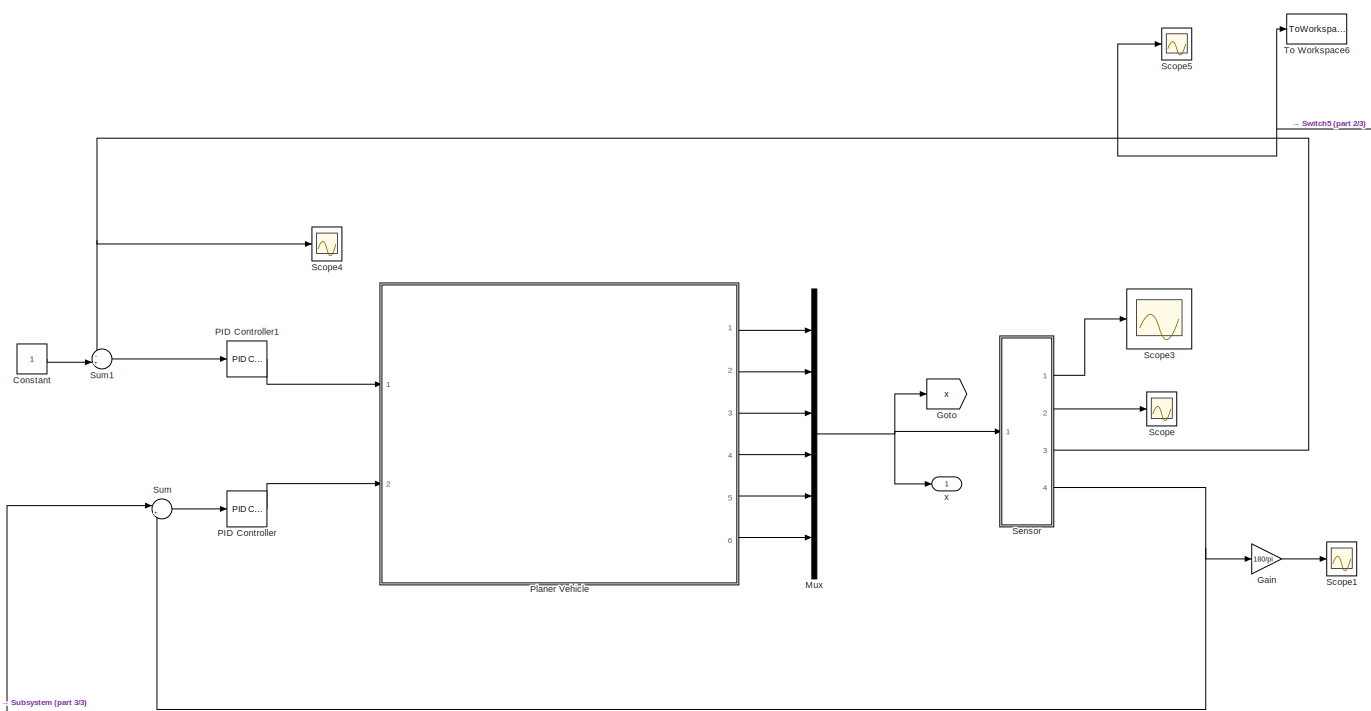
[diagram: root canvas - part 1/3, full width, middle band]
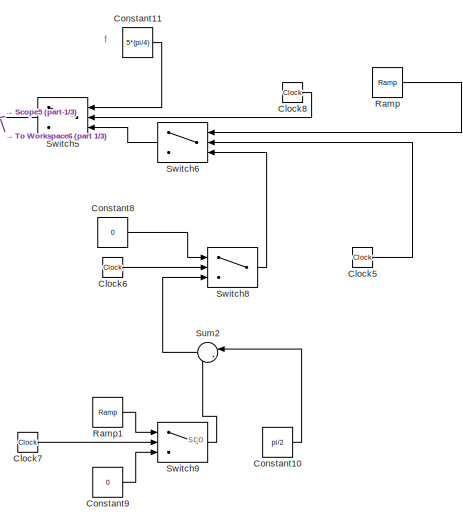
[diagram: root canvas - part 2/3, top right region]
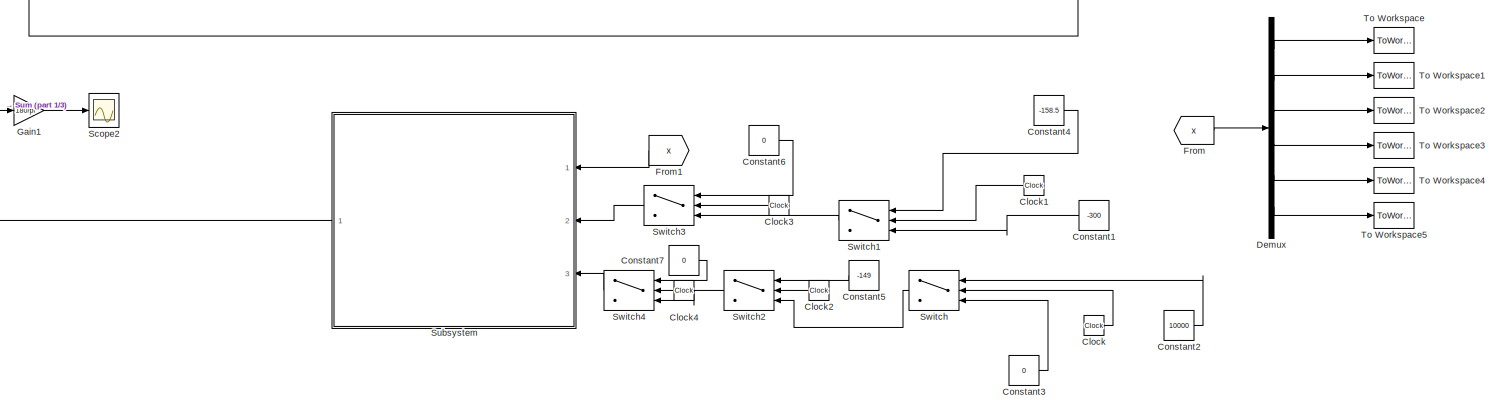
[diagram: root canvas - part 3/3, full width, bottom band]
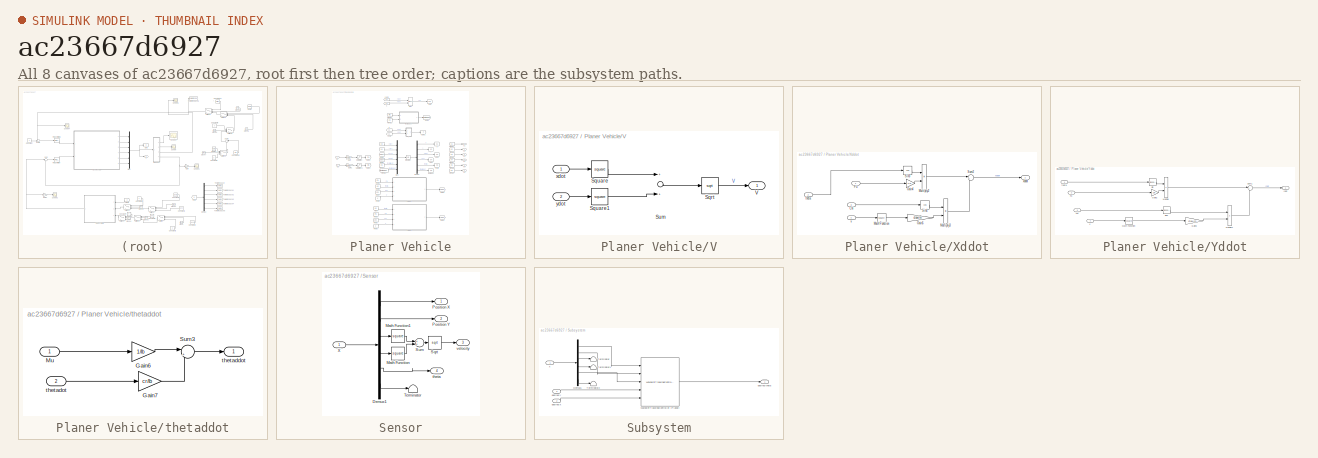
[diagram: thumbnail index - all 8 canvases of the model, root first then tree order]
MODEL slx_ac23667d6927
KIND model
CONFIG AbsTol = auto
CONFIG EnableMultiTasking = off
CONFIG FixedStep = auto
CONFIG MaxStep = auto
CONFIG MinStep = auto
CONFIG RelTol = 1e-3
CONFIG SampleTimeConstraint = Unconstrained
CONFIG Solver = VariableStepAuto
CONFIG SolverName = VariableStepAuto
CONFIG StartTime = 0.0
CONFIG StopTime = 1537
BLOCK [Clock] Clock
BLOCK [Clock] Clock1
BLOCK [Clock] Clock2
BLOCK [Clock] Clock3
BLOCK [Clock] Clock4
BLOCK [Clock] Clock5
BLOCK [Clock] Clock6
  Decimation = 154
BLOCK [Clock] Clock7
  Decimation = 154
BLOCK [Clock] Clock8
BLOCK [Constant] Constant
BLOCK [Constant] Constant1
  Value = -300
BLOCK [Constant] Constant10
  Value = pi/2
BLOCK [Constant] Constant11
  Value = 5*(pi/4)
BLOCK [Constant] Constant2
  Value = 10000
BLOCK [Constant] Constant3
  Value = 0
BLOCK [Constant] Constant4
  Value = -158.5
BLOCK [Constant] Constant5
  Value = -149
BLOCK [Constant] Constant6
  Value = 0
BLOCK [Constant] Constant7
  Value = 0
BLOCK [Constant] Constant8
  Value = 0
BLOCK [Constant] Constant9
  Value = 0
BLOCK [Demux] Demux
  DisplayOption = bar
  Outputs = 6
  Ports = [1, 6]
BLOCK [From] From
  GotoTag = x
BLOCK [From] From1
  GotoTag = x
BLOCK [Gain] Gain
  Gain = 180/pi
  OutDataTypeStr = Inherit: Inherit via internal rule
  ParamDataTypeStr = Inherit: Inherit via internal rule
  SaturateOnIntegerOverflow = off
BLOCK [Gain] Gain1
  Gain = 180/pi
  OutDataTypeStr = Inherit: Inherit via internal rule
  ParamDataTypeStr = Inherit: Inherit via internal rule
  SaturateOnIntegerOverflow = off
BLOCK [Goto] Goto
  GotoTag = x
BLOCK [Mux] Mux
  DisplayOption = bar
  Inputs = 6
  Ports = [6, 1]
BLOCK [Reference] PID Controller  REF=simulink/Continuous/PID Controller
  Ports = [1, 1]
  SourceBlock = simulink/Continuous/PID Controller
  SourceProductBaseCode = SL
  SourceProductName = Simulink
  SourceType = PID 1dof
BLOCK [Reference] PID Controller1  REF=simulink/Continuous/PID Controller
  Ports = [1, 1]
  SourceBlock = simulink/Continuous/PID Controller
  SourceProductBaseCode = SL
  SourceProductName = Simulink
  SourceType = PID 1dof
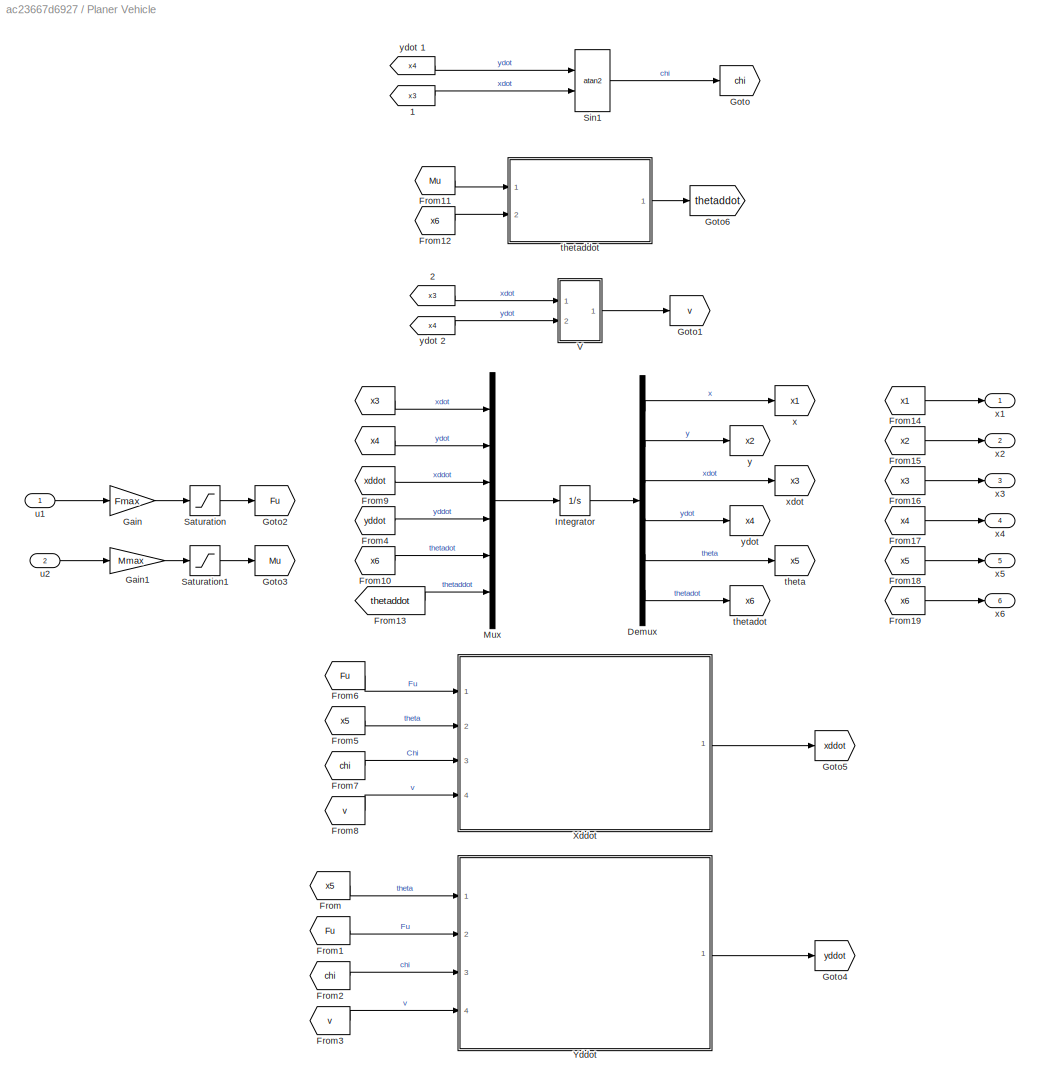
BLOCK [SubSystem] Planer Vehicle
  Ports = [2, 6]
  RequestExecContextInheritance = off
BLOCK [From] Planer Vehicle/ 
  GotoTag = x3
BLOCK [From] Planer Vehicle/ 1
  GotoTag = x3
BLOCK [From] Planer Vehicle/ 2
  GotoTag = x3
BLOCK [From] Planer Vehicle/ ydot 1
  GotoTag = x4
BLOCK [From] Planer Vehicle/ ydot 2
  GotoTag = x4
BLOCK [Demux] Planer Vehicle/Demux
  DisplayOption = bar
  Outputs = 6
  Ports = [1, 6]
BLOCK [From] Planer Vehicle/From
  GotoTag = x5
BLOCK [From] Planer Vehicle/From1
  GotoTag = Fu
BLOCK [From] Planer Vehicle/From10
  GotoTag = x6
BLOCK [From] Planer Vehicle/From11
  GotoTag = Mu
BLOCK [From] Planer Vehicle/From12
  GotoTag = x6
BLOCK [From] Planer Vehicle/From13
  GotoTag = thetaddot
BLOCK [From] Planer Vehicle/From14
  GotoTag = x1
BLOCK [From] Planer Vehicle/From15
  GotoTag = x2
BLOCK [From] Planer Vehicle/From16
  GotoTag = x3
BLOCK [From] Planer Vehicle/From17
  GotoTag = x4
BLOCK [From] Planer Vehicle/From18
  GotoTag = x5
BLOCK [From] Planer Vehicle/From19
  GotoTag = x6
BLOCK [From] Planer Vehicle/From2
  GotoTag = chi
BLOCK [From] Planer Vehicle/From3
  GotoTag = v
BLOCK [From] Planer Vehicle/From4
  GotoTag = yddot
BLOCK [From] Planer Vehicle/From5
  GotoTag = x5
BLOCK [From] Planer Vehicle/From6
  GotoTag = Fu
BLOCK [From] Planer Vehicle/From7
  GotoTag = chi
BLOCK [From] Planer Vehicle/From8
  GotoTag = v
BLOCK [From] Planer Vehicle/From9
  GotoTag = xddot
BLOCK [Gain] Planer Vehicle/Gain
  Gain = Fmax
  OutDataTypeStr = Inherit: Inherit via internal rule
  ParamDataTypeStr = Inherit: Inherit via internal rule
  SaturateOnIntegerOverflow = off
BLOCK [Gain] Planer Vehicle/Gain1
  Gain = Mmax
  OutDataTypeStr = Inherit: Inherit via internal rule
  ParamDataTypeStr = Inherit: Inherit via internal rule
  SaturateOnIntegerOverflow = off
BLOCK [Goto] Planer Vehicle/Goto
  GotoTag = chi
BLOCK [Goto] Planer Vehicle/Goto1
  GotoTag = v
BLOCK [Goto] Planer Vehicle/Goto2
  GotoTag = Fu
BLOCK [Goto] Planer Vehicle/Goto3
  GotoTag = Mu
BLOCK [Goto] Planer Vehicle/Goto4
  GotoTag = yddot
BLOCK [Goto] Planer Vehicle/Goto5
  GotoTag = xddot
BLOCK [Goto] Planer Vehicle/Goto6
  GotoTag = thetaddot
BLOCK [Integrator] Planer Vehicle/Integrator
  InitialCondition = [0;0;0;0;0;0]
  Ports = [1, 1]
BLOCK [Mux] Planer Vehicle/Mux
  DisplayOption = bar
  Inputs = 6
  Ports = [6, 1]
BLOCK [Saturate] Planer Vehicle/Saturation
  InputPortMap = u0
  LowerLimit = 0
  Ports = [1, 1]
  UpperLimit = 1
BLOCK [Saturate] Planer Vehicle/Saturation1
  InputPortMap = u0
  LowerLimit = 0
  Ports = [1, 1]
  UpperLimit = 1
BLOCK [Trigonometry] Planer Vehicle/Sin1
  Operator = atan2
  Ports = [2, 1]
BLOCK [SubSystem] Planer Vehicle/V
  Ports = [2, 1]
  RequestExecContextInheritance = off
BLOCK [Sqrt] Planer Vehicle/V/Sqrt
BLOCK [Math] Planer Vehicle/V/Square
  Operator = square
  Ports = [1, 1]
BLOCK [Math] Planer Vehicle/V/Square1
  Operator = square
  Ports = [1, 1]
BLOCK [Sum] Planer Vehicle/V/Sum
  InputSameDT = off
  OutDataTypeStr = Inherit: Inherit via internal rule
  Ports = [2, 1]
  SaturateOnIntegerOverflow = off
BLOCK [Outport] Planer Vehicle/V/V
  IconDisplay = Port number
BLOCK [Inport] Planer Vehicle/V/xdot
  IconDisplay = Port number
BLOCK [Inport] Planer Vehicle/V/ydot
  IconDisplay = Port number
  Port = 2
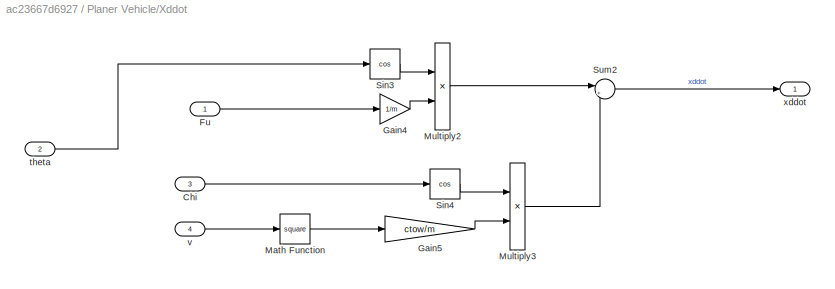
BLOCK [SubSystem] Planer Vehicle/Xddot
  Ports = [4, 1]
  RequestExecContextInheritance = off
BLOCK [Inport] Planer Vehicle/Xddot/Chi
  IconDisplay = Port number
  Port = 3
BLOCK [Inport] Planer Vehicle/Xddot/Fu
  IconDisplay = Port number
BLOCK [Gain] Planer Vehicle/Xddot/Gain4
  Gain = 1/m
  OutDataTypeStr = Inherit: Inherit via internal rule
  ParamDataTypeStr = Inherit: Inherit via internal rule
  SaturateOnIntegerOverflow = off
BLOCK [Gain] Planer Vehicle/Xddot/Gain5
  Gain = ctow/m
  OutDataTypeStr = Inherit: Inherit via internal rule
  ParamDataTypeStr = Inherit: Inherit via internal rule
  SaturateOnIntegerOverflow = off
BLOCK [Math] Planer Vehicle/Xddot/Math Function
  Operator = square
  Ports = [1, 1]
BLOCK [Product] Planer Vehicle/Xddot/Multiply2
  InputSameDT = off
  OutDataTypeStr = Inherit: Inherit via internal rule
  Ports = [2, 1]
  RndMeth = Floor
  SaturateOnIntegerOverflow = off
BLOCK [Product] Planer Vehicle/Xddot/Multiply3
  InputSameDT = off
  OutDataTypeStr = Inherit: Inherit via internal rule
  Ports = [2, 1]
  RndMeth = Floor
  SaturateOnIntegerOverflow = off
BLOCK [Trigonometry] Planer Vehicle/Xddot/Sin3
  Operator = cos
  Ports = [1, 1]
BLOCK [Trigonometry] Planer Vehicle/Xddot/Sin4
  Operator = cos
  Ports = [1, 1]
BLOCK [Sum] Planer Vehicle/Xddot/Sum2
  IconShape = round
  InputSameDT = off
  Inputs = |+-
  OutDataTypeStr = Inherit: Inherit via internal rule
  Ports = [2, 1]
  SaturateOnIntegerOverflow = off
BLOCK [Inport] Planer Vehicle/Xddot/theta
  IconDisplay = Port number
  Port = 2
BLOCK [Inport] Planer Vehicle/Xddot/v
  IconDisplay = Port number
  Port = 4
BLOCK [Outport] Planer Vehicle/Xddot/xddot
  IconDisplay = Port number
BLOCK [SubSystem] Planer Vehicle/Yddot
  Ports = [4, 1]
  RequestExecContextInheritance = off
BLOCK [Inport] Planer Vehicle/Yddot/Fu
  IconDisplay = Port number
  Port = 2
BLOCK [Gain] Planer Vehicle/Yddot/Gain2
  Gain = 1/m
  OutDataTypeStr = Inherit: Inherit via internal rule
  ParamDataTypeStr = Inherit: Inherit via internal rule
  SaturateOnIntegerOverflow = off
BLOCK [Gain] Planer Vehicle/Yddot/Gain3
  Gain = ctow/m
  OutDataTypeStr = Inherit: Inherit via internal rule
  ParamDataTypeStr = Inherit: Inherit via internal rule
  SaturateOnIntegerOverflow = off
BLOCK [Math] Planer Vehicle/Yddot/Math Function
  Operator = square
  Ports = [1, 1]
BLOCK [Product] Planer Vehicle/Yddot/Multiply
  InputSameDT = off
  OutDataTypeStr = Inherit: Inherit via internal rule
  Ports = [2, 1]
  RndMeth = Floor
  SaturateOnIntegerOverflow = off
BLOCK [Product] Planer Vehicle/Yddot/Multiply1
  InputSameDT = off
  OutDataTypeStr = Inherit: Inherit via internal rule
  Ports = [2, 1]
  RndMeth = Floor
  SaturateOnIntegerOverflow = off
BLOCK [Trigonometry] Planer Vehicle/Yddot/Sin
  Ports = [1, 1]
BLOCK [Trigonometry] Planer Vehicle/Yddot/Sin2
  Ports = [1, 1]
BLOCK [Sum] Planer Vehicle/Yddot/Sum1
  IconShape = round
  InputSameDT = off
  Inputs = |+-
  OutDataTypeStr = Inherit: Inherit via internal rule
  Ports = [2, 1]
  SaturateOnIntegerOverflow = off
BLOCK [Inport] Planer Vehicle/Yddot/chi
  IconDisplay = Port number
  Port = 3
BLOCK [Inport] Planer Vehicle/Yddot/theta
  IconDisplay = Port number
BLOCK [Inport] Planer Vehicle/Yddot/v
  IconDisplay = Port number
  Port = 4
BLOCK [Outport] Planer Vehicle/Yddot/ydot
  IconDisplay = Port number
BLOCK [Goto] Planer Vehicle/theta
  GotoTag = x5
BLOCK [SubSystem] Planer Vehicle/thetaddot
  Ports = [2, 1]
  RequestExecContextInheritance = off
BLOCK [Gain] Planer Vehicle/thetaddot/Gain6
  Gain = 1/Ib
  OutDataTypeStr = Inherit: Inherit via internal rule
  ParamDataTypeStr = Inherit: Inherit via internal rule
  SaturateOnIntegerOverflow = off
BLOCK [Gain] Planer Vehicle/thetaddot/Gain7
  Gain = cr/Ib
  OutDataTypeStr = Inherit: Inherit via internal rule
  ParamDataTypeStr = Inherit: Inherit via internal rule
  SaturateOnIntegerOverflow = off
BLOCK [Inport] Planer Vehicle/thetaddot/Mu
  IconDisplay = Port number
BLOCK [Sum] Planer Vehicle/thetaddot/Sum3
  IconShape = round
  InputSameDT = off
  Inputs = |+-
  OutDataTypeStr = Inherit: Inherit via internal rule
  Ports = [2, 1]
  SaturateOnIntegerOverflow = off
BLOCK [Outport] Planer Vehicle/thetaddot/thetaddot
  IconDisplay = Port number
BLOCK [Inport] Planer Vehicle/thetaddot/thetadot
  IconDisplay = Port number
  Port = 2
BLOCK [Goto] Planer Vehicle/thetadot
  GotoTag = x6
BLOCK [Inport] Planer Vehicle/u1
  IconDisplay = Port number
BLOCK [Inport] Planer Vehicle/u2 
  IconDisplay = Port number
  Port = 2
BLOCK [Goto] Planer Vehicle/x
  GotoTag = x1
BLOCK [Outport] Planer Vehicle/x1
  IconDisplay = Port number
BLOCK [Outport] Planer Vehicle/x2
  IconDisplay = Port number
  Port = 2
BLOCK [Outport] Planer Vehicle/x3
  IconDisplay = Port number
  Port = 3
BLOCK [Outport] Planer Vehicle/x4
  IconDisplay = Port number
  Port = 4
BLOCK [Outport] Planer Vehicle/x5
  IconDisplay = Port number
  Port = 5
BLOCK [Outport] Planer Vehicle/x6
  IconDisplay = Port number
  Port = 6
BLOCK [Goto] Planer Vehicle/xdot
  GotoTag = x3
BLOCK [Goto] Planer Vehicle/y
  GotoTag = x2
BLOCK [Goto] Planer Vehicle/ydot
  GotoTag = x4
BLOCK [Reference] Ramp  REF=simulink/Sources/Ramp
  Ports = [0, 1]
  SourceBlock = simulink/Sources/Ramp
  SourceProductBaseCode = SL
  SourceProductName = Simulink
  SourceType = Ramp
BLOCK [Reference] Ramp1  REF=simulink/Sources/Ramp
  Ports = [0, 1]
  SourceBlock = simulink/Sources/Ramp
  SourceProductBaseCode = SL
  SourceProductName = Simulink
  SourceType = Ramp
BLOCK [Scope] Scope
  Floating = off
  NumInputPorts = 1
  Ports = [1]
  ScopeSpecificationString = Simulink.scopes.TimeScopeBlockCfg('CurrentConfiguration', extmgr.ConfigurationSet(extmgr.Configuration('Core','General UI',true),extmgr.Configuration('Core','Source UI',true),extmgr.Configuration('Sources','WiredSimulink',true),extmgr.Configuration('Visuals','Time Domain',true,'SerializedDisplays',{struct('MinYLimReal','-41.28944','MaxYLimReal','371.60494','YLabelReal','','MinYLimMag','0.00000','M...<+1438ch>
BLOCK [Scope] Scope1
  Floating = off
  NumInputPorts = 1
  Ports = [1]
  ScopeSpecificationString = Simulink.scopes.TimeScopeBlockCfg('CurrentConfiguration', extmgr.ConfigurationSet(extmgr.Configuration('Core','General UI',true),extmgr.Configuration('Core','Source UI',true),extmgr.Configuration('Sources','WiredSimulink',true,'DataLoggingVariableName','ScopeData1'),extmgr.Configuration('Visuals','Time Domain',true,'SerializedDisplays',{struct('MinYLimReal','-28.96123','MaxYLimReal','260.65107','Y...<+1373ch>
BLOCK [Scope] Scope2
  Floating = off
  NumInputPorts = 1
  Ports = [1]
  ScopeSpecificationString = Simulink.scopes.TimeScopeBlockCfg('CurrentConfiguration', extmgr.ConfigurationSet(extmgr.Configuration('Core','General UI',true),extmgr.Configuration('Core','Source UI',true),extmgr.Configuration('Sources','WiredSimulink',true,'DataLoggingVariableName','ScopeData2'),extmgr.Configuration('Visuals','Time Domain',true,'SerializedDisplays',{struct('MinYLimReal','-242.11089','MaxYLimReal','378.99801','...<+1456ch>
BLOCK [Scope] Scope3
  Floating = off
  NumInputPorts = 1
  Ports = [1]
  ScopeSpecificationString = Simulink.scopes.TimeScopeBlockCfg('CurrentConfiguration', extmgr.ConfigurationSet(extmgr.Configuration('Core','General UI',true),extmgr.Configuration('Core','Source UI',true),extmgr.Configuration('Sources','WiredSimulink',true,'DataLoggingVariableName','ScopeData3'),extmgr.Configuration('Visuals','Time Domain',true,'SerializedDisplays',{struct('MinYLimReal','-63.29604','MaxYLimReal','569.66434','Y...<+1477ch>
BLOCK [Scope] Scope4
  Floating = off
  NumInputPorts = 1
  Ports = [1]
  ScopeSpecificationString = Simulink.scopes.TimeScopeBlockCfg('CurrentConfiguration', extmgr.ConfigurationSet(extmgr.Configuration('Core','General UI',true),extmgr.Configuration('Core','Source UI',true),extmgr.Configuration('Sources','WiredSimulink',true,'DataLoggingVariableName','ScopeData4'),extmgr.Configuration('Visuals','Time Domain',true,'SerializedDisplays',{struct('MinYLimReal','-0.78998','MaxYLimReal','7.10985','YLab...<+1467ch>
BLOCK [Scope] Scope5
  Floating = off
  NumInputPorts = 1
  Ports = [1]
  ScopeSpecificationString = Simulink.scopes.TimeScopeBlockCfg('CurrentConfiguration', extmgr.ConfigurationSet(extmgr.Configuration('Core','General UI',true),extmgr.Configuration('Core','Source UI',true),extmgr.Configuration('Sources','WiredSimulink',true,'DataLoggingVariableName','ScopeData1'),extmgr.Configuration('Visuals','Time Domain',true,'SerializedDisplays',{struct('MinYLimReal','-0.49087','MaxYLimReal','4.41786','YLab...<+1366ch>
BLOCK [SubSystem] Sensor
  Ports = [1, 4]
  RequestExecContextInheritance = off
BLOCK [Demux] Sensor/Demux1
  DisplayOption = bar
  Outputs = 6
  Ports = [1, 6]
BLOCK [Math] Sensor/Math Function
  Operator = square
  Ports = [1, 1]
BLOCK [Math] Sensor/Math Function1
  Operator = square
  Ports = [1, 1]
BLOCK [Outport] Sensor/Position X
  IconDisplay = Port number
BLOCK [Outport] Sensor/Position Y 
  IconDisplay = Port number
  Port = 2
BLOCK [Sqrt] Sensor/Sqrt
BLOCK [Sum] Sensor/Sum
  InputSameDT = off
  OutDataTypeStr = Inherit: Inherit via internal rule
  Ports = [2, 1]
  SaturateOnIntegerOverflow = off
BLOCK [Terminator] Sensor/Terminator
BLOCK [Inport] Sensor/X
  IconDisplay = Port number
BLOCK [Outport] Sensor/theta 
  IconDisplay = Port number
  Port = 4
BLOCK [Outport] Sensor/velocity
  IconDisplay = Port number
  Port = 3
BLOCK [SubSystem] Subsystem
  Ports = [3, 1]
  RequestExecContextInheritance = off
BLOCK [Demux] Subsystem/Demux1
  DisplayOption = bar
  Outputs = 6
  Ports = [1, 6]
BLOCK [Terminator] Subsystem/Terminator
BLOCK [Terminator] Subsystem/Terminator1
BLOCK [Terminator] Subsystem/Terminator2
BLOCK [Reference] Subsystem/WaypointTrackingController (Planar)  REF=AE511Library/WaypointTrackingController (Planar)
  Ports = [5, 1]
  SourceBlock = AE511Library/WaypointTrackingController (Planar)
BLOCK [Outport] Subsystem/desired theta 
  IconDisplay = Port number
BLOCK [Inport] Subsystem/desired x
  IconDisplay = Port number
  Port = 2
BLOCK [Inport] Subsystem/desired y 
  IconDisplay = Port number
  Port = 3
BLOCK [Inport] Subsystem/x
  IconDisplay = Port number
BLOCK [Sum] Sum
  IconShape = round
  InputSameDT = off
  Inputs = |+-
  OutDataTypeStr = Inherit: Inherit via internal rule
  Ports = [2, 1]
  SaturateOnIntegerOverflow = off
BLOCK [Sum] Sum1
  IconShape = round
  InputSameDT = off
  Inputs = -+|
  OutDataTypeStr = Inherit: Inherit via internal rule
  Ports = [2, 1]
  SaturateOnIntegerOverflow = off
BLOCK [Sum] Sum2
  IconShape = round
  InputSameDT = off
  Inputs = |++
  OutDataTypeStr = Inherit: Inherit via internal rule
  Ports = [2, 1]
  SaturateOnIntegerOverflow = off
BLOCK [Switch] Switch
  Criteria = u2 > Threshold
  InputSameDT = off
  SaturateOnIntegerOverflow = off
  Threshold = 150
BLOCK [Switch] Switch1
  Criteria = u2 > Threshold
  InputSameDT = off
  SaturateOnIntegerOverflow = off
  Threshold = 750
BLOCK [Switch] Switch2
  Criteria = u2 > Threshold
  InputSameDT = off
  SaturateOnIntegerOverflow = off
  Threshold = 750
BLOCK [Switch] Switch3
  Criteria = u2 > Threshold
  InputSameDT = off
  SaturateOnIntegerOverflow = off
  Threshold = 1300
BLOCK [Switch] Switch4
  Criteria = u2 > Threshold
  InputSameDT = off
  SaturateOnIntegerOverflow = off
  Threshold = 1300
BLOCK [Switch] Switch5
  Criteria = u2 > Threshold
  InputSameDT = off
  SaturateOnIntegerOverflow = off
  Threshold = 755
BLOCK [Switch] Switch6
  Criteria = u2 > Threshold
  InputSameDT = off
  SaturateOnIntegerOverflow = off
  Threshold = 750
BLOCK [Switch] Switch8
  Criteria = u2 > Threshold
  InputSameDT = off
  SaturateOnIntegerOverflow = off
  Threshold = 152
BLOCK [Switch] Switch9
  Criteria = u2 > Threshold
  InputSameDT = off
  SaturateOnIntegerOverflow = off
  Threshold = 150
BLOCK [ToWorkspace] To Workspace
  FixptAsFi = on
  MaxDataPoints = inf
  Ports = [1]
  SampleTime = -1
  Save2DSignal = 3-D array (concatenate along third dimension)
  SaveFormat = Structure With Time
  VariableName = X
BLOCK [ToWorkspace] To Workspace1
  FixptAsFi = on
  MaxDataPoints = inf
  Ports = [1]
  SampleTime = -1
  Save2DSignal = 3-D array (concatenate along third dimension)
  SaveFormat = Structure With Time
  VariableName = Y
BLOCK [ToWorkspace] To Workspace2
  FixptAsFi = on
  MaxDataPoints = inf
  Ports = [1]
  SampleTime = -1
  Save2DSignal = 3-D array (concatenate along third dimension)
  SaveFormat = Structure With Time
  VariableName = XDOT
BLOCK [ToWorkspace] To Workspace3
  FixptAsFi = on
  MaxDataPoints = inf
  Ports = [1]
  SampleTime = -1
  Save2DSignal = 3-D array (concatenate along third dimension)
  SaveFormat = Structure With Time
  VariableName = YDOT
BLOCK [ToWorkspace] To Workspace4
  FixptAsFi = on
  MaxDataPoints = inf
  Ports = [1]
  SampleTime = -1
  Save2DSignal = 3-D array (concatenate along third dimension)
  SaveFormat = Structure With Time
  VariableName = THETA
BLOCK [ToWorkspace] To Workspace5
  FixptAsFi = on
  MaxDataPoints = inf
  Ports = [1]
  SampleTime = -1
  Save2DSignal = 3-D array (concatenate along third dimension)
  SaveFormat = Structure With Time
  VariableName = THETADOT
BLOCK [ToWorkspace] To Workspace6
  FixptAsFi = on
  MaxDataPoints = inf
  Ports = [1]
  SampleTime = -1
  Save2DSignal = 3-D array (concatenate along third dimension)
  SaveFormat = Structure With Time
  VariableName = psi
BLOCK [Outport] x
  IconDisplay = Port number
ANNOTATION (root): f
ANNOTATION (root): sco
LINE Clock1:1 -> Switch1:2
LINE Clock2:1 -> Switch2:2
LINE Clock3:1 -> Switch3:2
LINE Clock4:1 -> Switch4:2
LINE Clock5:1 -> Switch6:2
LINE Clock6:1 -> Switch8:2
LINE Clock7:1 -> Switch9:2
LINE Clock8:1 -> Switch5:2
LINE Clock:1 -> Switch:2
LINE Constant10:1 -> Sum2:1
LINE Constant11:1 -> Switch5:1
LINE Constant1:1 -> Switch1:3
LINE Constant2:1 -> Switch:1
LINE Constant3:1 -> Switch:3
LINE Constant4:1 -> Switch1:1
LINE Constant5:1 -> Switch2:1
LINE Constant6:1 -> Switch3:1
LINE Constant7:1 -> Switch4:1
LINE Constant8:1 -> Switch8:1
LINE Constant9:1 -> Switch9:3
LINE Constant:1 -> Sum1:2
LINE Demux:1 -> To Workspace:1
LINE Demux:2 -> To Workspace1:1
LINE Demux:3 -> To Workspace2:1
LINE Demux:4 -> To Workspace3:1
LINE Demux:5 -> To Workspace4:1
LINE Demux:6 -> To Workspace5:1
LINE From1:1 -> Subsystem:1
LINE From:1 -> Demux:1
LINE Gain1:1 -> Scope2:1
LINE Gain:1 -> Scope1:1
NET Mux:1 -> Goto:1, Sensor:1, x:1
LINE PID Controller1:1 -> Planer Vehicle:1
LINE PID Controller:1 -> Planer Vehicle:2
LINE Planer Vehicle/ 1:1 -> Planer Vehicle/Sin1:2
LINE Planer Vehicle/ 2:1 -> Planer Vehicle/V:1
NET Planer Vehicle/ :1 -> Planer Vehicle/Mux:1, Planer Vehicle/Mux:2
LINE Planer Vehicle/ ydot 1:1 -> Planer Vehicle/Sin1:1
LINE Planer Vehicle/ ydot 2:1 -> Planer Vehicle/V:2
LINE Planer Vehicle/Demux:1 -> Planer Vehicle/x:1
LINE Planer Vehicle/Demux:2 -> Planer Vehicle/y:1
LINE Planer Vehicle/Demux:3 -> Planer Vehicle/xdot:1
LINE Planer Vehicle/Demux:4 -> Planer Vehicle/ydot:1
LINE Planer Vehicle/Demux:5 -> Planer Vehicle/theta:1
LINE Planer Vehicle/Demux:6 -> Planer Vehicle/thetadot:1
LINE Planer Vehicle/From10:1 -> Planer Vehicle/Mux:5
LINE Planer Vehicle/From11:1 -> Planer Vehicle/thetaddot:1
LINE Planer Vehicle/From12:1 -> Planer Vehicle/thetaddot:2
LINE Planer Vehicle/From13:1 -> Planer Vehicle/Mux:6
LINE Planer Vehicle/From14:1 -> Planer Vehicle/x1:1
LINE Planer Vehicle/From15:1 -> Planer Vehicle/x2:1
LINE Planer Vehicle/From16:1 -> Planer Vehicle/x3:1
LINE Planer Vehicle/From17:1 -> Planer Vehicle/x4:1
LINE Planer Vehicle/From18:1 -> Planer Vehicle/x5:1
LINE Planer Vehicle/From19:1 -> Planer Vehicle/x6:1
LINE Planer Vehicle/From1:1 -> Planer Vehicle/Yddot:2
LINE Planer Vehicle/From2:1 -> Planer Vehicle/Yddot:3
LINE Planer Vehicle/From3:1 -> Planer Vehicle/Yddot:4
LINE Planer Vehicle/From4:1 -> Planer Vehicle/Mux:4
LINE Planer Vehicle/From5:1 -> Planer Vehicle/Xddot:2
LINE Planer Vehicle/From6:1 -> Planer Vehicle/Xddot:1
LINE Planer Vehicle/From7:1 -> Planer Vehicle/Xddot:3
LINE Planer Vehicle/From8:1 -> Planer Vehicle/Xddot:4
LINE Planer Vehicle/From9:1 -> Planer Vehicle/Mux:3
LINE Planer Vehicle/From:1 -> Planer Vehicle/Yddot:1
LINE Planer Vehicle/Gain1:1 -> Planer Vehicle/Saturation1:1
LINE Planer Vehicle/Gain:1 -> Planer Vehicle/Saturation:1
LINE Planer Vehicle/Integrator:1 -> Planer Vehicle/Demux:1
LINE Planer Vehicle/Mux:1 -> Planer Vehicle/Integrator:1
LINE Planer Vehicle/Saturation1:1 -> Planer Vehicle/Goto3:1
LINE Planer Vehicle/Saturation:1 -> Planer Vehicle/Goto2:1
LINE Planer Vehicle/Sin1:1 -> Planer Vehicle/Goto:1
LINE Planer Vehicle/V/Sqrt:1 -> Planer Vehicle/V/V:1
LINE Planer Vehicle/V/Square1:1 -> Planer Vehicle/V/Sum:2
LINE Planer Vehicle/V/Square:1 -> Planer Vehicle/V/Sum:1
LINE Planer Vehicle/V/Sum:1 -> Planer Vehicle/V/Sqrt:1
LINE Planer Vehicle/V/xdot:1 -> Planer Vehicle/V/Square:1
LINE Planer Vehicle/V/ydot:1 -> Planer Vehicle/V/Square1:1
LINE Planer Vehicle/V:1 -> Planer Vehicle/Goto1:1
LINE Planer Vehicle/Xddot/Chi:1 -> Planer Vehicle/Xddot/Sin4:1
LINE Planer Vehicle/Xddot/Fu:1 -> Planer Vehicle/Xddot/Gain4:1
LINE Planer Vehicle/Xddot/Gain4:1 -> Planer Vehicle/Xddot/Multiply2:2
LINE Planer Vehicle/Xddot/Gain5:1 -> Planer Vehicle/Xddot/Multiply3:2
LINE Planer Vehicle/Xddot/Math Function:1 -> Planer Vehicle/Xddot/Gain5:1
LINE Planer Vehicle/Xddot/Multiply2:1 -> Planer Vehicle/Xddot/Sum2:1
LINE Planer Vehicle/Xddot/Multiply3:1 -> Planer Vehicle/Xddot/Sum2:2
LINE Planer Vehicle/Xddot/Sin3:1 -> Planer Vehicle/Xddot/Multiply2:1
LINE Planer Vehicle/Xddot/Sin4:1 -> Planer Vehicle/Xddot/Multiply3:1
LINE Planer Vehicle/Xddot/Sum2:1 -> Planer Vehicle/Xddot/xddot:1
LINE Planer Vehicle/Xddot/theta:1 -> Planer Vehicle/Xddot/Sin3:1
LINE Planer Vehicle/Xddot/v:1 -> Planer Vehicle/Xddot/Math Function:1
LINE Planer Vehicle/Xddot:1 -> Planer Vehicle/Goto5:1
LINE Planer Vehicle/Yddot/Fu:1 -> Planer Vehicle/Yddot/Gain2:1
LINE Planer Vehicle/Yddot/Gain2:1 -> Planer Vehicle/Yddot/Multiply:2
LINE Planer Vehicle/Yddot/Gain3:1 -> Planer Vehicle/Yddot/Multiply1:2
LINE Planer Vehicle/Yddot/Math Function:1 -> Planer Vehicle/Yddot/Gain3:1
LINE Planer Vehicle/Yddot/Multiply1:1 -> Planer Vehicle/Yddot/Sum1:2
LINE Planer Vehicle/Yddot/Multiply:1 -> Planer Vehicle/Yddot/Sum1:1
LINE Planer Vehicle/Yddot/Sin2:1 -> Planer Vehicle/Yddot/Multiply1:1
LINE Planer Vehicle/Yddot/Sin:1 -> Planer Vehicle/Yddot/Multiply:1
LINE Planer Vehicle/Yddot/Sum1:1 -> Planer Vehicle/Yddot/ydot:1
LINE Planer Vehicle/Yddot/chi:1 -> Planer Vehicle/Yddot/Sin2:1
LINE Planer Vehicle/Yddot/theta:1 -> Planer Vehicle/Yddot/Sin:1
LINE Planer Vehicle/Yddot/v:1 -> Planer Vehicle/Yddot/Math Function:1
LINE Planer Vehicle/Yddot:1 -> Planer Vehicle/Goto4:1
LINE Planer Vehicle/thetaddot/Gain6:1 -> Planer Vehicle/thetaddot/Sum3:1
LINE Planer Vehicle/thetaddot/Gain7:1 -> Planer Vehicle/thetaddot/Sum3:2
LINE Planer Vehicle/thetaddot/Mu:1 -> Planer Vehicle/thetaddot/Gain6:1
LINE Planer Vehicle/thetaddot/Sum3:1 -> Planer Vehicle/thetaddot/thetaddot:1
LINE Planer Vehicle/thetaddot/thetadot:1 -> Planer Vehicle/thetaddot/Gain7:1
LINE Planer Vehicle/thetaddot:1 -> Planer Vehicle/Goto6:1
LINE Planer Vehicle/u1:1 -> Planer Vehicle/Gain:1
LINE Planer Vehicle/u2 :1 -> Planer Vehicle/Gain1:1
LINE Planer Vehicle:1 -> Mux:1
LINE Planer Vehicle:2 -> Mux:2
LINE Planer Vehicle:3 -> Mux:3
LINE Planer Vehicle:4 -> Mux:4
LINE Planer Vehicle:5 -> Mux:5
LINE Planer Vehicle:6 -> Mux:6
LINE Ramp1:1 -> Switch9:1
LINE Ramp:1 -> Switch6:1
LINE Sensor/Demux1:1 -> Sensor/Position X:1
LINE Sensor/Demux1:2 -> Sensor/Position Y :1
LINE Sensor/Demux1:3 -> Sensor/Math Function1:1
LINE Sensor/Demux1:4 -> Sensor/Math Function:1
LINE Sensor/Demux1:5 -> Sensor/theta :1
LINE Sensor/Demux1:6 -> Sensor/Terminator:1
LINE Sensor/Math Function1:1 -> Sensor/Sum:1
LINE Sensor/Math Function:1 -> Sensor/Sum:2
LINE Sensor/Sqrt:1 -> Sensor/velocity:1
LINE Sensor/Sum:1 -> Sensor/Sqrt:1
LINE Sensor/X:1 -> Sensor/Demux1:1
LINE Sensor:1 -> Scope3:1
LINE Sensor:2 -> Scope:1
NET Sensor:3 -> Scope4:1, Sum1:1
NET Sensor:4 -> Gain:1, Sum:2
LINE Subsystem/Demux1:1 -> Subsystem/WaypointTrackingController (Planar):1
LINE Subsystem/Demux1:2 -> Subsystem/WaypointTrackingController (Planar):2
LINE Subsystem/Demux1:3 -> Subsystem/Terminator:1
LINE Subsystem/Demux1:4 -> Subsystem/Terminator1:1
LINE Subsystem/Demux1:5 -> Subsystem/WaypointTrackingController (Planar):3
LINE Subsystem/Demux1:6 -> Subsystem/Terminator2:1
LINE Subsystem/WaypointTrackingController (Planar):1 -> Subsystem/desired theta :1
LINE Subsystem/desired x:1 -> Subsystem/WaypointTrackingController (Planar):5
LINE Subsystem/desired y :1 -> Subsystem/WaypointTrackingController (Planar):4
LINE Subsystem/x:1 -> Subsystem/Demux1:1
NET Subsystem:1 -> Gain1:1, Sum:1
LINE Sum1:1 -> PID Controller1:1
LINE Sum2:1 -> Switch8:3
LINE Sum:1 -> PID Controller:1
LINE Switch1:1 -> Switch3:3
LINE Switch2:1 -> Switch4:3
LINE Switch3:1 -> Subsystem:2
LINE Switch4:1 -> Subsystem:3
NET Switch5:1 -> Scope5:1, To Workspace6:1
LINE Switch6:1 -> Switch5:3
LINE Switch8:1 -> Switch6:3
LINE Switch9:1 -> Sum2:2
LINE Switch:1 -> Switch2:3
note: NET lines group one-source signal fan-out (src -> all destinations, sorted); 1:1 wires keep LINE
